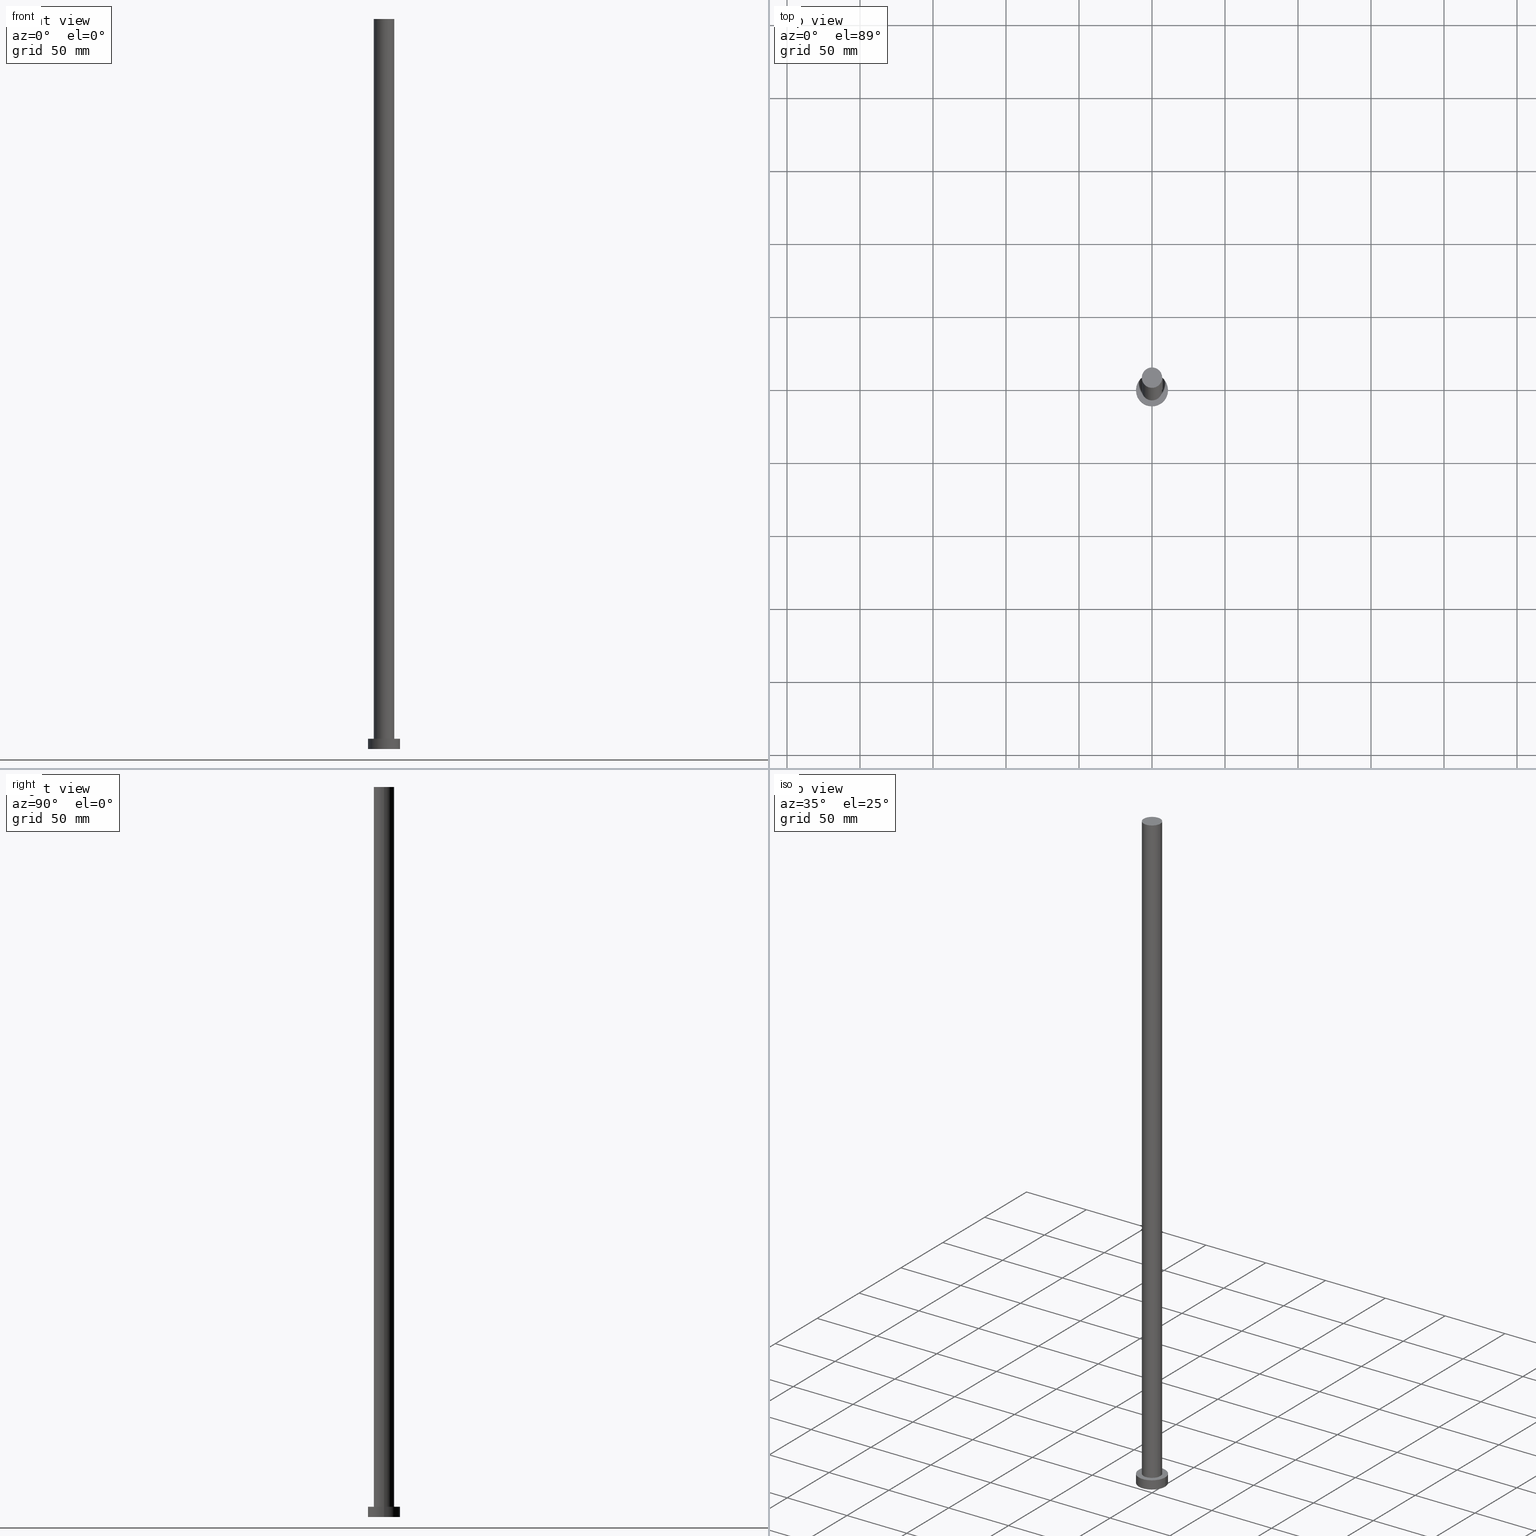
[diagram: canonical four-view strip — front | top / right | iso, engineering-drawing reading convention]
A machine part, canonical four-view strip (front | top / right | iso — engineering-drawing reading convention). The complete STEP part file that produces these views, byte-faithful:
ISO-10303-21;
HEADER;
FILE_DESCRIPTION (( 'STEP AP203' ),
    '1' );
FILE_NAME ('c714.STEP',
    '2023-02-13T10:42:24',
    ( '' ),
    ( '' ),
    'SwSTEP 2.0',
    'SolidWorks 2019',
    '' );
FILE_SCHEMA (( 'CONFIG_CONTROL_DESIGN' ));
ENDSEC;

DATA;
#1 = PERSON_AND_ORGANIZATION_ROLE ( 'creator' ) ;
#2 = COORDINATED_UNIVERSAL_TIME_OFFSET ( 1, 0, .AHEAD. ) ;
#3 = CC_DESIGN_APPROVAL ( #129, ( #87 ) ) ;
#4 = ADVANCED_FACE ( 'NONE', ( #249 ), #190, .T. ) ;
#5 = DIRECTION ( 'NONE',  ( -0.000000000000000000, -0.000000000000000000, -1.000000000000000000 ) ) ;
#6 = LOCAL_TIME ( 11, 42, 24.00000000000000000, #2 ) ;
#7 = VERTEX_POINT ( 'NONE', #166 ) ;
#8 = VERTEX_POINT ( 'NONE', #148 ) ;
#9 = CIRCLE ( 'NONE', #47, 7.000000000000000000 ) ;
#10 = APPROVAL_STATUS ( 'not_yet_approved' ) ;
#11 = ORIENTED_EDGE ( 'NONE', *, *, #73, .T. ) ;
#12 = DIRECTION ( 'NONE',  ( -0.000000000000000000, -0.000000000000000000, -1.000000000000000000 ) ) ;
#13 = PERSON_AND_ORGANIZATION_ROLE ( 'design_supplier' ) ;
#14 = CARTESIAN_POINT ( 'NONE',  ( -7.000000000000000000, 0.000000000000000000, 500.0000000000000000 ) ) ;
#15 = DIRECTION ( 'NONE',  ( 0.000000000000000000, 0.000000000000000000, 1.000000000000000000 ) ) ;
#16 = DIRECTION ( 'NONE',  ( 1.000000000000000000, 0.000000000000000000, 0.000000000000000000 ) ) ;
#17 = ADVANCED_FACE ( 'NONE', ( #194 ), #135, .F. ) ;
#18 = AXIS2_PLACEMENT_3D ( 'NONE', #90, #58, #98 ) ;
#19 = APPROVAL_DATE_TIME ( #156, #244 ) ;
#20 = PERSON_AND_ORGANIZATION ( #188, #78 ) ;
#21 = CIRCLE ( 'NONE', #46, 11.00000000000000000 ) ;
#22 = CARTESIAN_POINT ( 'NONE',  ( 0.000000000000000000, 0.000000000000000000, 0.000000000000000000 ) ) ;
#23 = APPROVAL_PERSON_ORGANIZATION ( #102, #244, #175 ) ;
#24 = DIRECTION ( 'NONE',  ( 1.000000000000000000, 0.000000000000000000, 0.000000000000000000 ) ) ;
#25 = CYLINDRICAL_SURFACE ( 'NONE', #138, 7.000000000000000000 ) ;
#26 = ORIENTED_EDGE ( 'NONE', *, *, #178, .F. ) ;
#27 = CARTESIAN_POINT ( 'NONE',  ( -11.00000000000000000, 0.000000000000000000, 7.000000000000000000 ) ) ;
#28 = ORIENTED_EDGE ( 'NONE', *, *, #85, .T. ) ;
#29 =( NAMED_UNIT ( * ) SI_UNIT ( $, .STERADIAN. ) SOLID_ANGLE_UNIT ( ) );
#30 = CARTESIAN_POINT ( 'NONE',  ( 7.000000000000000000, 8.572527594031473190E-16, 500.0000000000000000 ) ) ;
#31 = VECTOR ( 'NONE', #5, 1000.000000000000000 ) ;
#32 = CALENDAR_DATE ( 2023, 13, 2 ) ;
#33 = ORIENTED_EDGE ( 'NONE', *, *, #85, .F. ) ;
#34 = CIRCLE ( 'NONE', #18, 7.000000000000000000 ) ;
#35 = PRODUCT_DEFINITION_SHAPE ( 'NONE', 'NONE',  #38 ) ;
#36 = CALENDAR_DATE ( 2023, 13, 2 ) ;
#37 = DIRECTION ( 'NONE',  ( -0.000000000000000000, -0.000000000000000000, -1.000000000000000000 ) ) ;
#38 = PRODUCT_DEFINITION ( 'NEZN�M�', '', #87, #195 ) ;
#39 = PERSON_AND_ORGANIZATION ( #188, #78 ) ;
#40 = DIRECTION ( 'NONE',  ( 0.000000000000000000, 0.000000000000000000, 1.000000000000000000 ) ) ;
#41 = AXIS2_PLACEMENT_3D ( 'NONE', #159, #83, #184 ) ;
#42 = CARTESIAN_POINT ( 'NONE',  ( 0.000000000000000000, 0.000000000000000000, 0.000000000000000000 ) ) ;
#43 = PRODUCT_RELATED_PRODUCT_CATEGORY ( 'detail', '', ( #164 ) ) ;
#44 = CC_DESIGN_PERSON_AND_ORGANIZATION_ASSIGNMENT ( #56, #206, ( #87 ) ) ;
#45 = CC_DESIGN_PERSON_AND_ORGANIZATION_ASSIGNMENT ( #154, #1, ( #38 ) ) ;
#46 = AXIS2_PLACEMENT_3D ( 'NONE', #192, #15, #92 ) ;
#47 = AXIS2_PLACEMENT_3D ( 'NONE', #161, #182, #50 ) ;
#48 = EDGE_LOOP ( 'NONE', ( #203, #122 ) ) ;
#49 = DIRECTION ( 'NONE',  ( 1.000000000000000000, 0.000000000000000000, 0.000000000000000000 ) ) ;
#50 = DIRECTION ( 'NONE',  ( 1.000000000000000000, 0.000000000000000000, 0.000000000000000000 ) ) ;
#51 = VERTEX_POINT ( 'NONE', #167 ) ;
#52 = FACE_OUTER_BOUND ( 'NONE', #106, .T. ) ;
#53 = EDGE_CURVE ( 'NONE', #7, #163, #212, .T. ) ;
#54 = COORDINATED_UNIVERSAL_TIME_OFFSET ( 1, 0, .AHEAD. ) ;
#55 = VERTEX_POINT ( 'NONE', #14 ) ;
#56 = PERSON_AND_ORGANIZATION ( #188, #78 ) ;
#57 = ORIENTED_EDGE ( 'NONE', *, *, #196, .T. ) ;
#58 = DIRECTION ( 'NONE',  ( 0.000000000000000000, 0.000000000000000000, 1.000000000000000000 ) ) ;
#59 = ADVANCED_BREP_SHAPE_REPRESENTATION ( 'c714', ( #93, #207 ), #118 ) ;
#60 = SECURITY_CLASSIFICATION ( '', '', #113 ) ;
#61 = DIRECTION ( 'NONE',  ( -0.000000000000000000, -0.000000000000000000, -1.000000000000000000 ) ) ;
#62 = DATE_AND_TIME ( #153, #69 ) ;
#63 = VERTEX_POINT ( 'NONE', #30 ) ;
#64 = ORIENTED_EDGE ( 'NONE', *, *, #53, .T. ) ;
#65 = CARTESIAN_POINT ( 'NONE',  ( 0.000000000000000000, 0.000000000000000000, 7.000000000000000000 ) ) ;
#66 = CC_DESIGN_APPROVAL ( #244, ( #38 ) ) ;
#67 = DIRECTION ( 'NONE',  ( -0.000000000000000000, -0.000000000000000000, -1.000000000000000000 ) ) ;
#68 = CARTESIAN_POINT ( 'NONE',  ( 0.000000000000000000, 0.000000000000000000, 7.000000000000000000 ) ) ;
#69 = LOCAL_TIME ( 11, 42, 24.00000000000000000, #74 ) ;
#70 = ORIENTED_EDGE ( 'NONE', *, *, #228, .F. ) ;
#71 = CLOSED_SHELL ( 'NONE', ( #155, #199, #72, #240, #17, #4, #168 ) ) ;
#72 = ADVANCED_FACE ( 'NONE', ( #191 ), #91, .T. ) ;
#73 = EDGE_CURVE ( 'NONE', #157, #51, #109, .T. ) ;
#74 = COORDINATED_UNIVERSAL_TIME_OFFSET ( 1, 0, .AHEAD. ) ;
#75 = ORIENTED_EDGE ( 'NONE', *, *, #119, .T. ) ;
#76 = ORIENTED_EDGE ( 'NONE', *, *, #123, .T. ) ;
#77 = DIRECTION ( 'NONE',  ( -0.000000000000000000, -0.000000000000000000, -1.000000000000000000 ) ) ;
#78 = ORGANIZATION ( 'NEUR�EN�', 'NEUR�EN�', '' ) ;
#79 = CARTESIAN_POINT ( 'NONE',  ( -7.000000000000000000, 0.000000000000000000, 500.0000000000000000 ) ) ;
#80 = ORIENTED_EDGE ( 'NONE', *, *, #73, .F. ) ;
#81 = FACE_OUTER_BOUND ( 'NONE', #176, .T. ) ;
#82 = ORIENTED_EDGE ( 'NONE', *, *, #216, .F. ) ;
#83 = DIRECTION ( 'NONE',  ( 0.000000000000000000, 0.000000000000000000, 1.000000000000000000 ) ) ;
#84 = DIRECTION ( 'NONE',  ( -1.000000000000000000, 0.000000000000000000, 0.000000000000000000 ) ) ;
#85 = EDGE_CURVE ( 'NONE', #51, #86, #211, .T. ) ;
#86 = VERTEX_POINT ( 'NONE', #117 ) ;
#87 = PRODUCT_DEFINITION_FORMATION_WITH_SPECIFIED_SOURCE ( 'LIBOVOLN�', '', #164, .NOT_KNOWN. ) ;
#88 = APPROVAL_ROLE ( '' ) ;
#89 = ORIENTED_EDGE ( 'NONE', *, *, #210, .T. ) ;
#90 = CARTESIAN_POINT ( 'NONE',  ( 0.000000000000000000, 0.000000000000000000, 7.000000000000000000 ) ) ;
#91 = CYLINDRICAL_SURFACE ( 'NONE', #220, 11.00000000000000000 ) ;
#92 = DIRECTION ( 'NONE',  ( 1.000000000000000000, 0.000000000000000000, 0.000000000000000000 ) ) ;
#93 = MANIFOLD_SOLID_BREP ( 'P�idat vysunut�m3', #71 ) ;
#94 = DIRECTION ( 'NONE',  ( 0.000000000000000000, 0.000000000000000000, 1.000000000000000000 ) ) ;
#95 = APPROVAL ( #10, 'NEUR�EN�' ) ;
#96 = DIRECTION ( 'NONE',  ( 0.000000000000000000, 0.000000000000000000, 1.000000000000000000 ) ) ;
#97 = CIRCLE ( 'NONE', #200, 11.00000000000000000 ) ;
#98 = DIRECTION ( 'NONE',  ( 1.000000000000000000, 0.000000000000000000, 0.000000000000000000 ) ) ;
#99 = APPROVAL_DATE_TIME ( #115, #95 ) ;
#100 = CALENDAR_DATE ( 2023, 13, 2 ) ;
#101 = APPLICATION_CONTEXT ( 'configuration controlled 3d designs of mechanical parts and assemblies' ) ;
#102 = PERSON_AND_ORGANIZATION ( #188, #78 ) ;
#103 = AXIS2_PLACEMENT_3D ( 'NONE', #231, #209, #116 ) ;
#104 = VECTOR ( 'NONE', #12, 1000.000000000000000 ) ;
#105 = EDGE_LOOP ( 'NONE', ( #26, #126, #170, #57 ) ) ;
#106 = EDGE_LOOP ( 'NONE', ( #224, #235 ) ) ;
#107 = EDGE_LOOP ( 'NONE', ( #245, #255 ) ) ;
#108 = LINE ( 'NONE', #27, #139 ) ;
#109 = CIRCLE ( 'NONE', #246, 11.00000000000000000 ) ;
#110 = CARTESIAN_POINT ( 'NONE',  ( -7.000000000000000000, 0.000000000000000000, 7.000000000000000000 ) ) ;
#111 = CARTESIAN_POINT ( 'NONE',  ( 0.000000000000000000, 0.000000000000000000, 7.000000000000000000 ) ) ;
#112 = CARTESIAN_POINT ( 'NONE',  ( 7.000000000000000000, 8.572527594031473190E-16, 500.0000000000000000 ) ) ;
#113 = SECURITY_CLASSIFICATION_LEVEL ( 'unclassified' ) ;
#114 = CC_DESIGN_PERSON_AND_ORGANIZATION_ASSIGNMENT ( #134, #236, ( #60 ) ) ;
#115 = DATE_AND_TIME ( #36, #144 ) ;
#116 = DIRECTION ( 'NONE',  ( 1.000000000000000000, 0.000000000000000000, 0.000000000000000000 ) ) ;
#117 = CARTESIAN_POINT ( 'NONE',  ( 11.00000000000000000, 1.347111479062088405E-15, 0.000000000000000000 ) ) ;
#118 =( GEOMETRIC_REPRESENTATION_CONTEXT ( 3 ) GLOBAL_UNCERTAINTY_ASSIGNED_CONTEXT ( ( #171 ) ) GLOBAL_UNIT_ASSIGNED_CONTEXT ( ( #243, #141, #29 ) ) REPRESENTATION_CONTEXT ( 'NONE', 'WORKASPACE' ) );
#119 = EDGE_CURVE ( 'NONE', #86, #8, #21, .T. ) ;
#120 = PERSON_AND_ORGANIZATION_ROLE ( 'design_owner' ) ;
#121 = EDGE_CURVE ( 'NONE', #55, #63, #137, .T. ) ;
#122 = ORIENTED_EDGE ( 'NONE', *, *, #53, .F. ) ;
#123 = EDGE_CURVE ( 'NONE', #8, #86, #97, .T. ) ;
#124 = APPLICATION_PROTOCOL_DEFINITION ( 'international standard', 'config_control_design', 1994, #101 ) ;
#125 = CARTESIAN_POINT ( 'NONE',  ( 0.000000000000000000, 0.000000000000000000, 500.0000000000000000 ) ) ;
#126 = ORIENTED_EDGE ( 'NONE', *, *, #121, .F. ) ;
#127 = PLANE ( 'NONE',  #172 ) ;
#128 = LINE ( 'NONE', #112, #104 ) ;
#129 = APPROVAL ( #130, 'NEUR�EN�' ) ;
#130 = APPROVAL_STATUS ( 'not_yet_approved' ) ;
#131 = CARTESIAN_POINT ( 'NONE',  ( 11.00000000000000000, 1.347111479062088405E-15, 7.000000000000000000 ) ) ;
#132 = CC_DESIGN_DATE_AND_TIME_ASSIGNMENT ( #146, #230, ( #60 ) ) ;
#133 = VECTOR ( 'NONE', #37, 1000.000000000000000 ) ;
#134 = PERSON_AND_ORGANIZATION ( #188, #78 ) ;
#135 = PLANE ( 'NONE',  #225 ) ;
#136 = EDGE_CURVE ( 'NONE', #55, #163, #177, .T. ) ;
#137 = CIRCLE ( 'NONE', #162, 7.000000000000000000 ) ;
#138 = AXIS2_PLACEMENT_3D ( 'NONE', #183, #158, #241 ) ;
#139 = VECTOR ( 'NONE', #77, 1000.000000000000000 ) ;
#140 = ORIENTED_EDGE ( 'NONE', *, *, #216, .T. ) ;
#141 =( NAMED_UNIT ( * ) PLANE_ANGLE_UNIT ( ) SI_UNIT ( $, .RADIAN. ) );
#142 = CYLINDRICAL_SURFACE ( 'NONE', #201, 11.00000000000000000 ) ;
#143 = EDGE_LOOP ( 'NONE', ( #11, #140 ) ) ;
#144 = LOCAL_TIME ( 11, 42, 24.00000000000000000, #250 ) ;
#145 = PLANE ( 'NONE',  #213 ) ;
#146 = DATE_AND_TIME ( #32, #242 ) ;
#147 = CC_DESIGN_PERSON_AND_ORGANIZATION_ASSIGNMENT ( #20, #120, ( #164 ) ) ;
#148 = CARTESIAN_POINT ( 'NONE',  ( -11.00000000000000000, 0.000000000000000000, 0.000000000000000000 ) ) ;
#149 = APPROVAL_PERSON_ORGANIZATION ( #189, #95, #88 ) ;
#150 = DIRECTION ( 'NONE',  ( 1.000000000000000000, 0.000000000000000000, 0.000000000000000000 ) ) ;
#151 = DATE_AND_TIME ( #186, #180 ) ;
#152 = ORIENTED_EDGE ( 'NONE', *, *, #178, .T. ) ;
#153 = CALENDAR_DATE ( 2023, 13, 2 ) ;
#154 = PERSON_AND_ORGANIZATION ( #188, #78 ) ;
#155 = ADVANCED_FACE ( 'NONE', ( #81 ), #25, .T. ) ;
#156 = DATE_AND_TIME ( #100, #6 ) ;
#157 = VERTEX_POINT ( 'NONE', #193 ) ;
#158 = DIRECTION ( 'NONE',  ( -0.000000000000000000, -0.000000000000000000, -1.000000000000000000 ) ) ;
#159 = CARTESIAN_POINT ( 'NONE',  ( 0.000000000000000000, 0.000000000000000000, 7.000000000000000000 ) ) ;
#160 = CC_DESIGN_SECURITY_CLASSIFICATION ( #60, ( #87 ) ) ;
#161 = CARTESIAN_POINT ( 'NONE',  ( 0.000000000000000000, 0.000000000000000000, 500.0000000000000000 ) ) ;
#162 = AXIS2_PLACEMENT_3D ( 'NONE', #169, #40, #16 ) ;
#163 = VERTEX_POINT ( 'NONE', #110 ) ;
#164 = PRODUCT ( 'c714', 'c714', '', ( #202 ) ) ;
#165 = PERSON_AND_ORGANIZATION ( #188, #78 ) ;
#166 = CARTESIAN_POINT ( 'NONE',  ( 7.000000000000000000, 8.572527594031473190E-16, 7.000000000000000000 ) ) ;
#167 = CARTESIAN_POINT ( 'NONE',  ( 11.00000000000000000, 1.347111479062088405E-15, 7.000000000000000000 ) ) ;
#168 = ADVANCED_FACE ( 'NONE', ( #52 ), #145, .T. ) ;
#169 = CARTESIAN_POINT ( 'NONE',  ( 0.000000000000000000, 0.000000000000000000, 500.0000000000000000 ) ) ;
#170 = ORIENTED_EDGE ( 'NONE', *, *, #136, .T. ) ;
#171 = UNCERTAINTY_MEASURE_WITH_UNIT (LENGTH_MEASURE( 1.000000000000000082E-05 ), #243, 'distance_accuracy_value', 'NONE');
#172 = AXIS2_PLACEMENT_3D ( 'NONE', #65, #179, #204 ) ;
#173 = APPLICATION_PROTOCOL_DEFINITION ( 'international standard', 'config_control_design', 1994, #239 ) ;
#174 = AXIS2_PLACEMENT_3D ( 'NONE', #234, #67, #253 ) ;
#175 = APPROVAL_ROLE ( '' ) ;
#176 = EDGE_LOOP ( 'NONE', ( #70, #152, #64, #238 ) ) ;
#177 = LINE ( 'NONE', #79, #31 ) ;
#178 = EDGE_CURVE ( 'NONE', #63, #7, #128, .T. ) ;
#179 = DIRECTION ( 'NONE',  ( 0.000000000000000000, 0.000000000000000000, 1.000000000000000000 ) ) ;
#180 = LOCAL_TIME ( 11, 42, 24.00000000000000000, #232 ) ;
#181 = ORIENTED_EDGE ( 'NONE', *, *, #210, .F. ) ;
#182 = DIRECTION ( 'NONE',  ( 0.000000000000000000, 0.000000000000000000, 1.000000000000000000 ) ) ;
#183 = CARTESIAN_POINT ( 'NONE',  ( 0.000000000000000000, 0.000000000000000000, 500.0000000000000000 ) ) ;
#184 = DIRECTION ( 'NONE',  ( 1.000000000000000000, 0.000000000000000000, 0.000000000000000000 ) ) ;
#185 = DIRECTION ( 'NONE',  ( 0.000000000000000000, 0.000000000000000000, 1.000000000000000000 ) ) ;
#186 = CALENDAR_DATE ( 2023, 13, 2 ) ;
#187 = DIRECTION ( 'NONE',  ( -0.000000000000000000, -0.000000000000000000, -1.000000000000000000 ) ) ;
#188 = PERSON ( 'NEUR�EN�', 'NEUR�EN�', 'NEUR�EN�', ('NEUR�EN�'), ('NEUR�EN�'), ('NEUR�EN�') ) ;
#189 = PERSON_AND_ORGANIZATION ( #188, #78 ) ;
#190 = CYLINDRICAL_SURFACE ( 'NONE', #174, 7.000000000000000000 ) ;
#191 = FACE_OUTER_BOUND ( 'NONE', #248, .T. ) ;
#192 = CARTESIAN_POINT ( 'NONE',  ( 0.000000000000000000, 0.000000000000000000, 0.000000000000000000 ) ) ;
#193 = CARTESIAN_POINT ( 'NONE',  ( -11.00000000000000000, 0.000000000000000000, 7.000000000000000000 ) ) ;
#194 = FACE_OUTER_BOUND ( 'NONE', #107, .T. ) ;
#195 = DESIGN_CONTEXT ( 'detailed design', #239, 'design' ) ;
#196 = EDGE_CURVE ( 'NONE', #163, #7, #34, .T. ) ;
#197 = APPROVAL_STATUS ( 'not_yet_approved' ) ;
#198 = DIRECTION ( 'NONE',  ( 0.000000000000000000, 0.000000000000000000, 1.000000000000000000 ) ) ;
#199 = ADVANCED_FACE ( 'NONE', ( #217 ), #142, .T. ) ;
#200 = AXIS2_PLACEMENT_3D ( 'NONE', #42, #96, #49 ) ;
#201 = AXIS2_PLACEMENT_3D ( 'NONE', #223, #61, #84 ) ;
#202 = MECHANICAL_CONTEXT ( 'NONE', #101, 'mechanical' ) ;
#203 = ORIENTED_EDGE ( 'NONE', *, *, #196, .F. ) ;
#204 = DIRECTION ( 'NONE',  ( 1.000000000000000000, 0.000000000000000000, -0.000000000000000000 ) ) ;
#205 = CARTESIAN_POINT ( 'NONE',  ( 0.000000000000000000, 0.000000000000000000, 0.000000000000000000 ) ) ;
#206 = PERSON_AND_ORGANIZATION_ROLE ( 'creator' ) ;
#207 = AXIS2_PLACEMENT_3D ( 'NONE', #22, #198, #24 ) ;
#208 = DIRECTION ( 'NONE',  ( 1.000000000000000000, 0.000000000000000000, -0.000000000000000000 ) ) ;
#209 = DIRECTION ( 'NONE',  ( 0.000000000000000000, 0.000000000000000000, 1.000000000000000000 ) ) ;
#210 = EDGE_CURVE ( 'NONE', #157, #8, #108, .T. ) ;
#211 = LINE ( 'NONE', #131, #133 ) ;
#212 = CIRCLE ( 'NONE', #103, 7.000000000000000000 ) ;
#213 = AXIS2_PLACEMENT_3D ( 'NONE', #125, #185, #208 ) ;
#214 = DIRECTION ( 'NONE',  ( 0.000000000000000000, 0.000000000000000000, 1.000000000000000000 ) ) ;
#215 = APPROVAL_PERSON_ORGANIZATION ( #165, #129, #252 ) ;
#216 = EDGE_CURVE ( 'NONE', #51, #157, #227, .T. ) ;
#217 = FACE_OUTER_BOUND ( 'NONE', #226, .T. ) ;
#218 = CC_DESIGN_APPROVAL ( #95, ( #60 ) ) ;
#219 = CC_DESIGN_PERSON_AND_ORGANIZATION_ASSIGNMENT ( #39, #13, ( #87 ) ) ;
#220 = AXIS2_PLACEMENT_3D ( 'NONE', #111, #187, #251 ) ;
#221 = DATE_TIME_ROLE ( 'creation_date' ) ;
#222 = CC_DESIGN_DATE_AND_TIME_ASSIGNMENT ( #62, #221, ( #38 ) ) ;
#223 = CARTESIAN_POINT ( 'NONE',  ( 0.000000000000000000, 0.000000000000000000, 7.000000000000000000 ) ) ;
#224 = ORIENTED_EDGE ( 'NONE', *, *, #121, .T. ) ;
#225 = AXIS2_PLACEMENT_3D ( 'NONE', #205, #214, #233 ) ;
#226 = EDGE_LOOP ( 'NONE', ( #82, #28, #75, #181 ) ) ;
#227 = CIRCLE ( 'NONE', #41, 11.00000000000000000 ) ;
#228 = EDGE_CURVE ( 'NONE', #63, #55, #9, .T. ) ;
#229 = FACE_OUTER_BOUND ( 'NONE', #143, .T. ) ;
#230 = DATE_TIME_ROLE ( 'classification_date' ) ;
#231 = CARTESIAN_POINT ( 'NONE',  ( 0.000000000000000000, 0.000000000000000000, 7.000000000000000000 ) ) ;
#232 = COORDINATED_UNIVERSAL_TIME_OFFSET ( 1, 0, .AHEAD. ) ;
#233 = DIRECTION ( 'NONE',  ( 1.000000000000000000, 0.000000000000000000, -0.000000000000000000 ) ) ;
#234 = CARTESIAN_POINT ( 'NONE',  ( 0.000000000000000000, 0.000000000000000000, 500.0000000000000000 ) ) ;
#235 = ORIENTED_EDGE ( 'NONE', *, *, #228, .T. ) ;
#236 = PERSON_AND_ORGANIZATION_ROLE ( 'classification_officer' ) ;
#237 = SHAPE_DEFINITION_REPRESENTATION ( #35, #59 ) ;
#238 = ORIENTED_EDGE ( 'NONE', *, *, #136, .F. ) ;
#239 = APPLICATION_CONTEXT ( 'configuration controlled 3d designs of mechanical parts and assemblies' ) ;
#240 = ADVANCED_FACE ( 'NONE', ( #247, #229 ), #127, .T. ) ;
#241 = DIRECTION ( 'NONE',  ( -1.000000000000000000, 0.000000000000000000, 0.000000000000000000 ) ) ;
#242 = LOCAL_TIME ( 11, 42, 24.00000000000000000, #54 ) ;
#243 =( LENGTH_UNIT ( ) NAMED_UNIT ( * ) SI_UNIT ( .MILLI., .METRE. ) );
#244 = APPROVAL ( #197, 'NEUR�EN�' ) ;
#245 = ORIENTED_EDGE ( 'NONE', *, *, #123, .F. ) ;
#246 = AXIS2_PLACEMENT_3D ( 'NONE', #68, #94, #150 ) ;
#247 = FACE_BOUND ( 'NONE', #48, .T. ) ;
#248 = EDGE_LOOP ( 'NONE', ( #33, #80, #89, #76 ) ) ;
#249 = FACE_OUTER_BOUND ( 'NONE', #105, .T. ) ;
#250 = COORDINATED_UNIVERSAL_TIME_OFFSET ( 1, 0, .AHEAD. ) ;
#251 = DIRECTION ( 'NONE',  ( -1.000000000000000000, 0.000000000000000000, 0.000000000000000000 ) ) ;
#252 = APPROVAL_ROLE ( '' ) ;
#253 = DIRECTION ( 'NONE',  ( -1.000000000000000000, 0.000000000000000000, 0.000000000000000000 ) ) ;
#254 = APPROVAL_DATE_TIME ( #151, #129 ) ;
#255 = ORIENTED_EDGE ( 'NONE', *, *, #119, .F. ) ;
ENDSEC;
END-ISO-10303-21;
